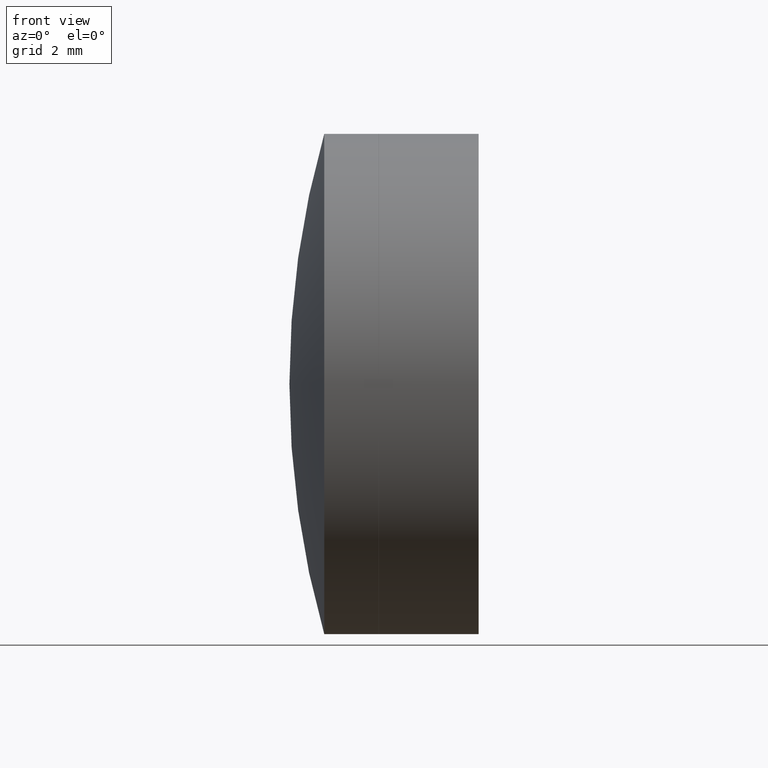
[diagram: clean part render]
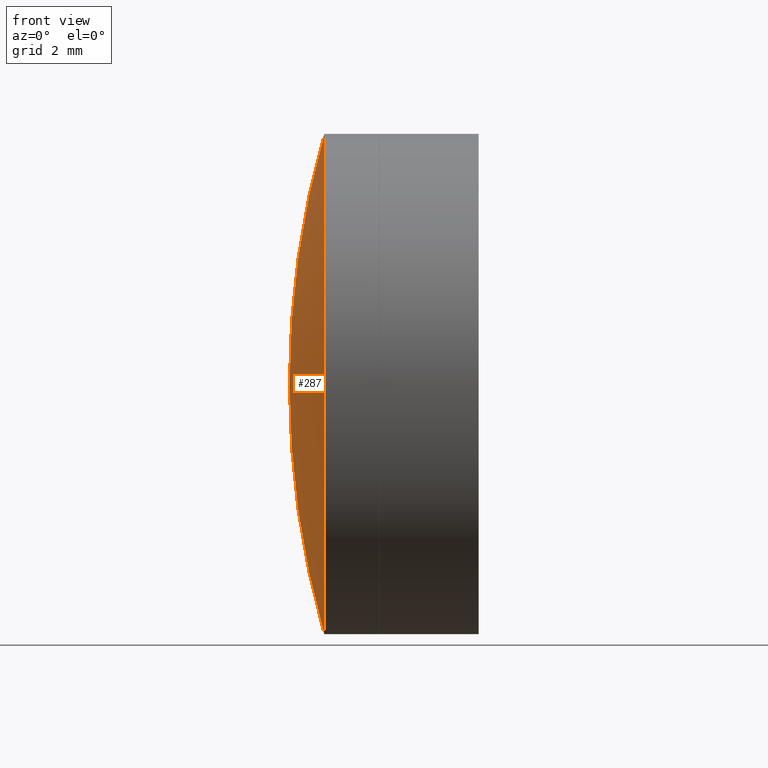
[diagram: same view with one face highlighted and labeled with its STEP entity id]
A machine part, front view. The second image highlights one B-rep face of the part: STEP entity #287.
In plain terms, the highlighted spherical surface has radius 23.23 mm.
Its self-contained STEP definition (entity closure, byte-faithful):
#5 = CARTESIAN_POINT ( 'NONE',  ( 37.20671594264952400, 0.0000000000000000000, 0.0000000000000000000 ) ) ;
#16 = AXIS2_PLACEMENT_3D ( 'NONE', #203, #195, #282 ) ;
#22 = DIRECTION ( 'NONE',  ( 0.0000000000000000000, 1.224646799147353200E-016, -1.000000000000000000 ) ) ;
#27 = CIRCLE ( 'NONE', #128, 23.23000000000000400 ) ;
#28 = CARTESIAN_POINT ( 'NONE',  ( 59.55197047241490100, 0.0000000000000000000, 1.024019535267817800E-015 ) ) ;
#29 = DIRECTION ( 'NONE',  ( 0.0000000000000000000, 0.0000000000000000000, 1.000000000000000000 ) ) ;
#33 = ORIENTED_EDGE ( 'NONE', *, *, #328, .T. ) ;
#62 = CIRCLE ( 'NONE', #73, 6.350000000000000500 ) ;
#73 = AXIS2_PLACEMENT_3D ( 'NONE', #5, #326, #29 ) ;
#109 = AXIS2_PLACEMENT_3D ( 'NONE', #331, #179, #22 ) ;
#111 = DIRECTION ( 'NONE',  ( 0.0000000000000000000, 0.0000000000000000000, 1.000000000000000000 ) ) ;
#117 = VERTEX_POINT ( 'NONE', #334 ) ;
#128 = AXIS2_PLACEMENT_3D ( 'NONE', #28, #163, #111 ) ;
#138 = VERTEX_POINT ( 'NONE', #227 ) ;
#139 = CARTESIAN_POINT ( 'NONE',  ( 37.20671594264951700, -7.776507174585689200E-016, 6.349999999999997900 ) ) ;
#163 = DIRECTION ( 'NONE',  ( 0.0000000000000000000, 1.000000000000000000, -0.0000000000000000000 ) ) ;
#179 = DIRECTION ( 'NONE',  ( 0.0000000000000000000, -1.000000000000000000, -1.224646799147353200E-016 ) ) ;
#184 = ORIENTED_EDGE ( 'NONE', *, *, #294, .F. ) ;
#195 = DIRECTION ( 'NONE',  ( -0.0000000000000000000, -1.000000000000000000, -0.0000000000000000000 ) ) ;
#203 = CARTESIAN_POINT ( 'NONE',  ( 59.55197047241490100, 0.0000000000000000000, 1.024019535267817800E-015 ) ) ;
#206 = VERTEX_POINT ( 'NONE', #139 ) ;
#227 = CARTESIAN_POINT ( 'NONE',  ( 36.32197047241489700, 0.0000000000000000000, -3.984077219418332500E-016 ) ) ;
#231 = SPHERICAL_SURFACE ( 'NONE', #16, 23.23000000000000400 ) ;
#245 = ORIENTED_EDGE ( 'NONE', *, *, #327, .T. ) ;
#255 = EDGE_LOOP ( 'NONE', ( #245, #33, #184 ) ) ;
#281 = FACE_OUTER_BOUND ( 'NONE', #255, .T. ) ;
#282 = DIRECTION ( 'NONE',  ( 0.0000000000000000000, 0.0000000000000000000, -1.000000000000000000 ) ) ;
#287 = ADVANCED_FACE ( 'NONE', ( #281 ), #231, .T. ) ;
#294 = EDGE_CURVE ( 'NONE', #117, #138, #27, .T. ) ;
#308 = CIRCLE ( 'NONE', #109, 23.23000000000000400 ) ;
#326 = DIRECTION ( 'NONE',  ( -1.000000000000000000, -0.0000000000000000000, -0.0000000000000000000 ) ) ;
#327 = EDGE_CURVE ( 'NONE', #117, #206, #62, .T. ) ;
#328 = EDGE_CURVE ( 'NONE', #206, #138, #308, .T. ) ;
#331 = CARTESIAN_POINT ( 'NONE',  ( 59.55197047241490100, 0.0000000000000000000, 1.024019535267817800E-015 ) ) ;
#334 = CARTESIAN_POINT ( 'NONE',  ( 37.20671594264951700, 0.0000000000000000000, -6.349999999999997000 ) ) ;